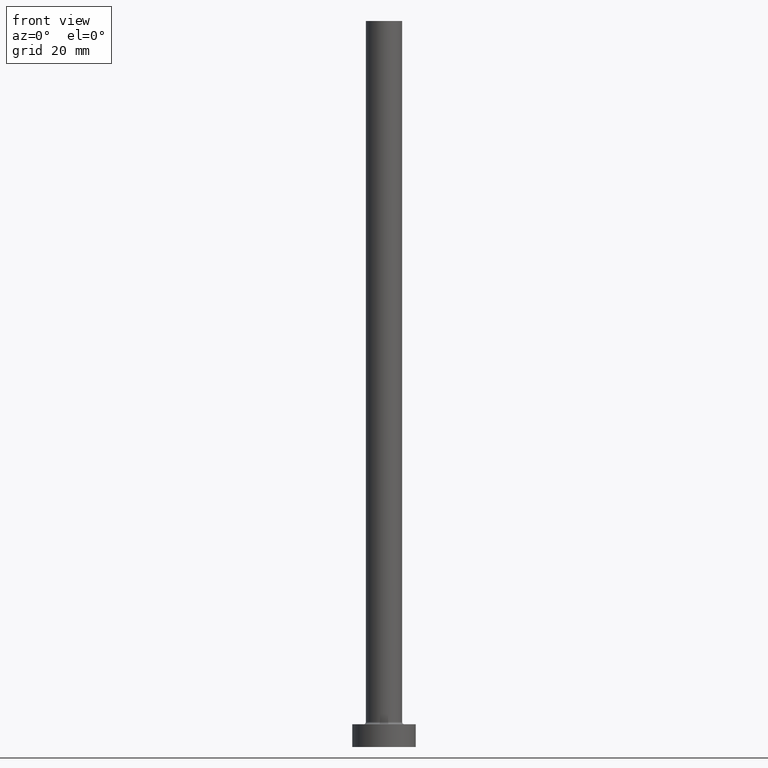
[diagram: clean part render]
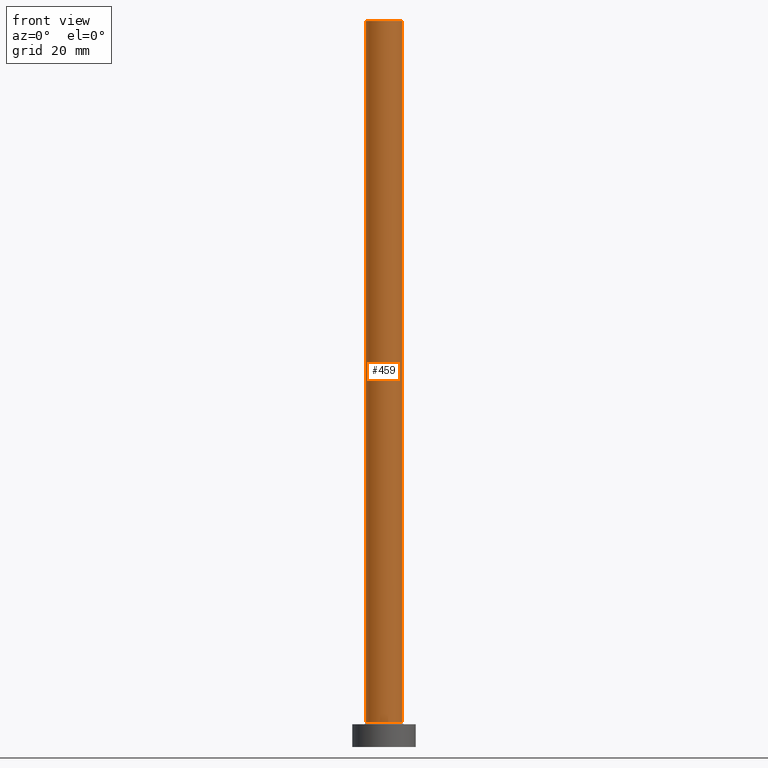
[diagram: same view with one face highlighted and labeled with its STEP entity id]
A machine part, front view. The second image highlights one B-rep face of the part: STEP entity #459.
In plain terms, the highlighted cylindrical surface (edge-blend (fillet) strip) has radius 4 mm, axis along (-0, -0, -1).
Its self-contained STEP definition (entity closure, byte-faithful):
#4 = LINE ( 'NONE', #186, #271 ) ;
#20 = EDGE_CURVE ( 'NONE', #95, #191, #4, .T. ) ;
#70 = CARTESIAN_POINT ( 'NONE',  ( -4.000000000000000000, 0.000000000000000000, 5.500000000000005329 ) ) ;
#80 = CARTESIAN_POINT ( 'NONE',  ( -4.000000000000000000, 0.000000000000000000, 160.0000000000000000 ) ) ;
#90 = EDGE_LOOP ( 'NONE', ( #457, #250, #171, #423 ) ) ;
#95 = VERTEX_POINT ( 'NONE', #80 ) ;
#96 = FACE_OUTER_BOUND ( 'NONE', #90, .T. ) ;
#111 = AXIS2_PLACEMENT_3D ( 'NONE', #202, #270, #137 ) ;
#122 = LINE ( 'NONE', #441, #192 ) ;
#125 = CARTESIAN_POINT ( 'NONE',  ( 4.000000000000000000, 4.898587196589412829E-16, 160.0000000000000000 ) ) ;
#127 = EDGE_CURVE ( 'NONE', #191, #337, #160, .T. ) ;
#137 = DIRECTION ( 'NONE',  ( -1.000000000000000000, 0.000000000000000000, 0.000000000000000000 ) ) ;
#144 = AXIS2_PLACEMENT_3D ( 'NONE', #359, #292, #357 ) ;
#147 = DIRECTION ( 'NONE',  ( 0.000000000000000000, 0.000000000000000000, 1.000000000000000000 ) ) ;
#160 = CIRCLE ( 'NONE', #144, 4.000000000000000000 ) ;
#171 = ORIENTED_EDGE ( 'NONE', *, *, #20, .T. ) ;
#186 = CARTESIAN_POINT ( 'NONE',  ( -4.000000000000000000, 0.000000000000000000, 160.0000000000000000 ) ) ;
#187 = EDGE_CURVE ( 'NONE', #95, #311, #394, .T. ) ;
#188 = DIRECTION ( 'NONE',  ( 1.000000000000000000, 0.000000000000000000, 0.000000000000000000 ) ) ;
#190 = CARTESIAN_POINT ( 'NONE',  ( 4.000000000000000000, 4.898587196589412829E-16, 5.500000000000005329 ) ) ;
#191 = VERTEX_POINT ( 'NONE', #70 ) ;
#192 = VECTOR ( 'NONE', #263, 1000.000000000000000 ) ;
#202 = CARTESIAN_POINT ( 'NONE',  ( 0.000000000000000000, 0.000000000000000000, 160.0000000000000000 ) ) ;
#239 = AXIS2_PLACEMENT_3D ( 'NONE', #326, #147, #188 ) ;
#240 = CYLINDRICAL_SURFACE ( 'NONE', #111, 4.000000000000000000 ) ;
#245 = EDGE_CURVE ( 'NONE', #311, #337, #122, .T. ) ;
#250 = ORIENTED_EDGE ( 'NONE', *, *, #187, .F. ) ;
#263 = DIRECTION ( 'NONE',  ( -0.000000000000000000, -0.000000000000000000, -1.000000000000000000 ) ) ;
#270 = DIRECTION ( 'NONE',  ( -0.000000000000000000, -0.000000000000000000, -1.000000000000000000 ) ) ;
#271 = VECTOR ( 'NONE', #329, 1000.000000000000000 ) ;
#292 = DIRECTION ( 'NONE',  ( 0.000000000000000000, 0.000000000000000000, 1.000000000000000000 ) ) ;
#311 = VERTEX_POINT ( 'NONE', #125 ) ;
#326 = CARTESIAN_POINT ( 'NONE',  ( 0.000000000000000000, 0.000000000000000000, 160.0000000000000000 ) ) ;
#329 = DIRECTION ( 'NONE',  ( -0.000000000000000000, -0.000000000000000000, -1.000000000000000000 ) ) ;
#337 = VERTEX_POINT ( 'NONE', #190 ) ;
#357 = DIRECTION ( 'NONE',  ( 1.000000000000000000, 0.000000000000000000, 0.000000000000000000 ) ) ;
#359 = CARTESIAN_POINT ( 'NONE',  ( 0.000000000000000000, 0.000000000000000000, 5.500000000000005329 ) ) ;
#394 = CIRCLE ( 'NONE', #239, 4.000000000000000000 ) ;
#423 = ORIENTED_EDGE ( 'NONE', *, *, #127, .T. ) ;
#441 = CARTESIAN_POINT ( 'NONE',  ( 4.000000000000000000, 4.898587196589412829E-16, 160.0000000000000000 ) ) ;
#457 = ORIENTED_EDGE ( 'NONE', *, *, #245, .F. ) ;
#459 = ADVANCED_FACE ( 'NONE', ( #96 ), #240, .T. ) ;